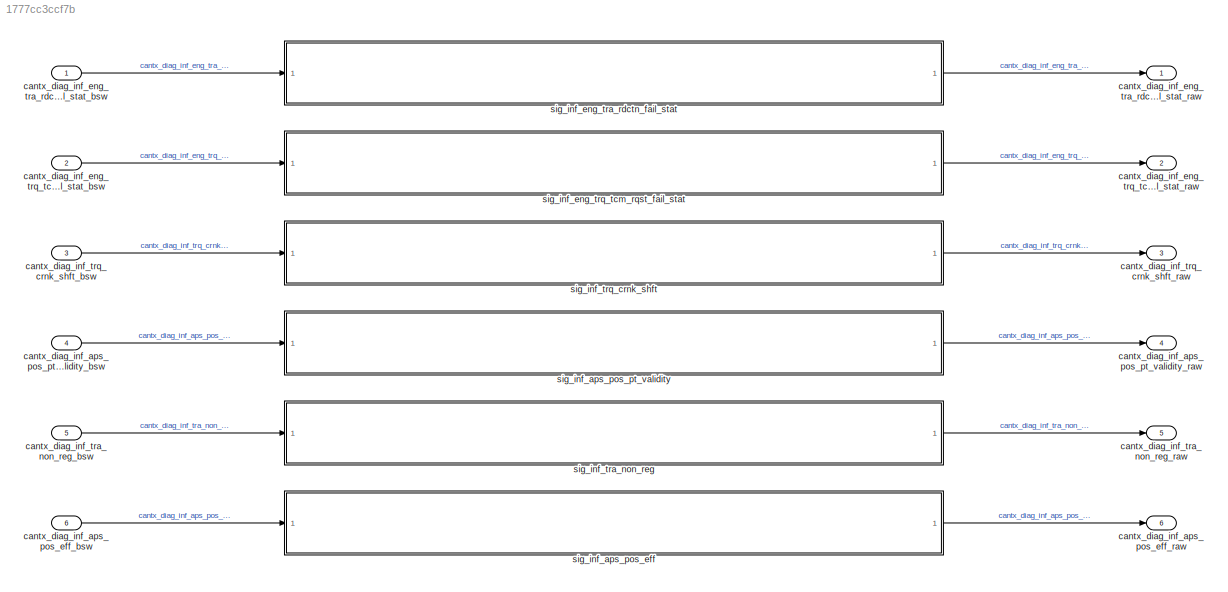
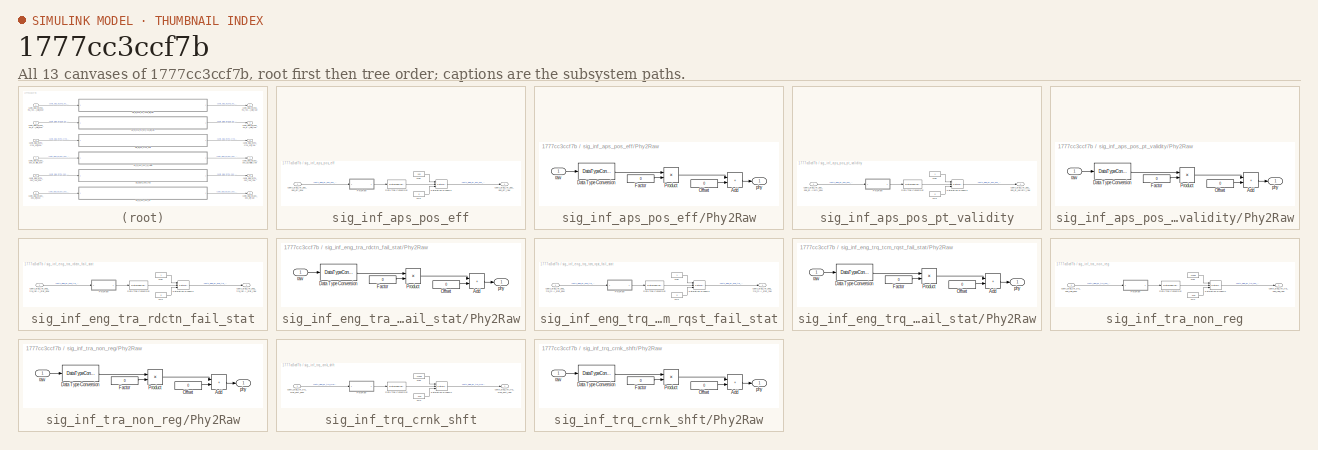
[diagram: thumbnail index - all 13 canvases of the model, root first then tree order]
MODEL slx_1777cc3ccf7b
KIND model
CONFIG AbsTol = auto
CONFIG FixedStep = auto
CONFIG MaxStep = auto
CONFIG MinStep = auto
CONFIG RelTol = 1e-3
CONFIG SampleTimeConstraint = Unconstrained
CONFIG Solver = ode45
CONFIG SolverMode = SingleTasking
CONFIG SolverName = ode45
CONFIG StartTime = 0.0
CONFIG StopTime = 10.0
BLOCK [Inport] cantx_diag_inf_aps_pos_eff_bsw
  Port = 6
BLOCK [Outport] cantx_diag_inf_aps_pos_eff_raw
  Port = 6
BLOCK [Inport] cantx_diag_inf_aps_pos_pt_validity_bsw
  Port = 4
BLOCK [Outport] cantx_diag_inf_aps_pos_pt_validity_raw
  Port = 4
BLOCK [Inport] cantx_diag_inf_eng_tra_rdctn_fail_stat_bsw
BLOCK [Outport] cantx_diag_inf_eng_tra_rdctn_fail_stat_raw
BLOCK [Inport] cantx_diag_inf_eng_trq_tcm_rqst_fail_stat_bsw
  Port = 2
BLOCK [Outport] cantx_diag_inf_eng_trq_tcm_rqst_fail_stat_raw
  Port = 2
BLOCK [Inport] cantx_diag_inf_tra_non_reg_bsw
  Port = 5
BLOCK [Outport] cantx_diag_inf_tra_non_reg_raw
  Port = 5
BLOCK [Inport] cantx_diag_inf_trq_crnk_shft_bsw
  Port = 3
BLOCK [Outport] cantx_diag_inf_trq_crnk_shft_raw
  Port = 3
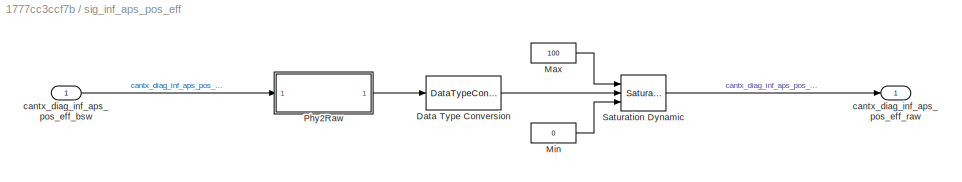
BLOCK [SubSystem] sig_inf_aps_pos_eff
  Ports = [1, 1]
  RequestExecContextInheritance = off
BLOCK [DataTypeConversion] sig_inf_aps_pos_eff/Data Type Conversion
  OutDataTypeStr = uint8
  RndMeth = Floor
  SaturateOnIntegerOverflow = off
BLOCK [Constant] sig_inf_aps_pos_eff/Max
  Value = 100
BLOCK [Constant] sig_inf_aps_pos_eff/Min
  Value = 0
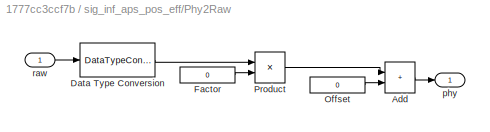
BLOCK [SubSystem] sig_inf_aps_pos_eff/Phy2Raw
  Ports = [1, 1]
  RequestExecContextInheritance = off
BLOCK [Sum] sig_inf_aps_pos_eff/Phy2Raw/Add
  IconShape = rectangular
  Ports = [2, 1]
BLOCK [DataTypeConversion] sig_inf_aps_pos_eff/Phy2Raw/Data Type Conversion
  OutDataTypeStr = single
  RndMeth = Floor
  SaturateOnIntegerOverflow = off
BLOCK [Constant] sig_inf_aps_pos_eff/Phy2Raw/Factor
  Value = 0
BLOCK [Constant] sig_inf_aps_pos_eff/Phy2Raw/Offset
  Value = 0
BLOCK [Product] sig_inf_aps_pos_eff/Phy2Raw/Product
  Ports = [2, 1]
BLOCK [Outport] sig_inf_aps_pos_eff/Phy2Raw/phy
  IconDisplay = Port number and signal name
BLOCK [Inport] sig_inf_aps_pos_eff/Phy2Raw/raw
BLOCK [Reference] sig_inf_aps_pos_eff/Saturation Dynamic  REF=simulink/Discontinuities/Saturation
Dynamic
  DoSatur = off
  LockScale = off
  OutDataType = fixdt(1, 16)
  OutDataTypeStr = Inherit: Same as second input
  OutMax = []
  OutMin = []
  OutScaling = 2^-10
  OutputDataTypeScalingMode = Same as second input
  Ports = [3, 1]
  RTWMemSecDataConstants = Inherit from model
  RTWMemSecDataInternal = Inherit from model
  RTWMemSecDataParameters = Inherit from model
  RTWMemSecFuncExecute = Inherit from model
  RTWMemSecFuncInitTerm = Inherit from model
  RndMeth = Floor
  SourceBlock = simulink/Discontinuities/Saturation\nDynamic
  SourceType = Saturation Dynamic
BLOCK [Inport] sig_inf_aps_pos_eff/cantx_diag_inf_aps_pos_eff_bsw
BLOCK [Outport] sig_inf_aps_pos_eff/cantx_diag_inf_aps_pos_eff_raw
BLOCK [SubSystem] sig_inf_aps_pos_pt_validity
  Ports = [1, 1]
  RequestExecContextInheritance = off
BLOCK [DataTypeConversion] sig_inf_aps_pos_pt_validity/Data Type Conversion
  OutDataTypeStr = uint8
  RndMeth = Floor
  SaturateOnIntegerOverflow = off
BLOCK [Constant] sig_inf_aps_pos_pt_validity/Max
BLOCK [Constant] sig_inf_aps_pos_pt_validity/Min
  Value = 0
BLOCK [SubSystem] sig_inf_aps_pos_pt_validity/Phy2Raw
  Ports = [1, 1]
  RequestExecContextInheritance = off
BLOCK [Sum] sig_inf_aps_pos_pt_validity/Phy2Raw/Add
  IconShape = rectangular
  Ports = [2, 1]
BLOCK [DataTypeConversion] sig_inf_aps_pos_pt_validity/Phy2Raw/Data Type Conversion
  OutDataTypeStr = single
  RndMeth = Floor
  SaturateOnIntegerOverflow = off
BLOCK [Constant] sig_inf_aps_pos_pt_validity/Phy2Raw/Factor
  Value = 0
BLOCK [Constant] sig_inf_aps_pos_pt_validity/Phy2Raw/Offset
  Value = 0
BLOCK [Product] sig_inf_aps_pos_pt_validity/Phy2Raw/Product
  Ports = [2, 1]
BLOCK [Outport] sig_inf_aps_pos_pt_validity/Phy2Raw/phy
  IconDisplay = Port number and signal name
BLOCK [Inport] sig_inf_aps_pos_pt_validity/Phy2Raw/raw
BLOCK [Reference] sig_inf_aps_pos_pt_validity/Saturation Dynamic  REF=simulink/Discontinuities/Saturation
Dynamic
  DoSatur = off
  LockScale = off
  OutDataType = fixdt(1, 16)
  OutDataTypeStr = Inherit: Same as second input
  OutMax = []
  OutMin = []
  OutScaling = 2^-10
  OutputDataTypeScalingMode = Same as second input
  Ports = [3, 1]
  RTWMemSecDataConstants = Inherit from model
  RTWMemSecDataInternal = Inherit from model
  RTWMemSecDataParameters = Inherit from model
  RTWMemSecFuncExecute = Inherit from model
  RTWMemSecFuncInitTerm = Inherit from model
  RndMeth = Floor
  SourceBlock = simulink/Discontinuities/Saturation\nDynamic
  SourceType = Saturation Dynamic
BLOCK [Inport] sig_inf_aps_pos_pt_validity/cantx_diag_inf_aps_pos_pt_validity_bsw
BLOCK [Outport] sig_inf_aps_pos_pt_validity/cantx_diag_inf_aps_pos_pt_validity_raw
BLOCK [SubSystem] sig_inf_eng_tra_rdctn_fail_stat
  Ports = [1, 1]
  RequestExecContextInheritance = off
BLOCK [DataTypeConversion] sig_inf_eng_tra_rdctn_fail_stat/Data Type Conversion
  OutDataTypeStr = uint8
  RndMeth = Floor
  SaturateOnIntegerOverflow = off
BLOCK [Constant] sig_inf_eng_tra_rdctn_fail_stat/Max
BLOCK [Constant] sig_inf_eng_tra_rdctn_fail_stat/Min
  Value = 0
BLOCK [SubSystem] sig_inf_eng_tra_rdctn_fail_stat/Phy2Raw
  Ports = [1, 1]
  RequestExecContextInheritance = off
BLOCK [Sum] sig_inf_eng_tra_rdctn_fail_stat/Phy2Raw/Add
  IconShape = rectangular
  Ports = [2, 1]
BLOCK [DataTypeConversion] sig_inf_eng_tra_rdctn_fail_stat/Phy2Raw/Data Type Conversion
  OutDataTypeStr = single
  RndMeth = Floor
  SaturateOnIntegerOverflow = off
BLOCK [Constant] sig_inf_eng_tra_rdctn_fail_stat/Phy2Raw/Factor
  Value = 0
BLOCK [Constant] sig_inf_eng_tra_rdctn_fail_stat/Phy2Raw/Offset
  Value = 0
BLOCK [Product] sig_inf_eng_tra_rdctn_fail_stat/Phy2Raw/Product
  Ports = [2, 1]
BLOCK [Outport] sig_inf_eng_tra_rdctn_fail_stat/Phy2Raw/phy
  IconDisplay = Port number and signal name
BLOCK [Inport] sig_inf_eng_tra_rdctn_fail_stat/Phy2Raw/raw
BLOCK [Reference] sig_inf_eng_tra_rdctn_fail_stat/Saturation Dynamic  REF=simulink/Discontinuities/Saturation
Dynamic
  DoSatur = off
  LockScale = off
  OutDataType = fixdt(1, 16)
  OutDataTypeStr = Inherit: Same as second input
  OutMax = []
  OutMin = []
  OutScaling = 2^-10
  OutputDataTypeScalingMode = Same as second input
  Ports = [3, 1]
  RTWMemSecDataConstants = Inherit from model
  RTWMemSecDataInternal = Inherit from model
  RTWMemSecDataParameters = Inherit from model
  RTWMemSecFuncExecute = Inherit from model
  RTWMemSecFuncInitTerm = Inherit from model
  RndMeth = Floor
  SourceBlock = simulink/Discontinuities/Saturation\nDynamic
  SourceType = Saturation Dynamic
BLOCK [Inport] sig_inf_eng_tra_rdctn_fail_stat/cantx_diag_inf_eng_tra_rdctn_fail_stat_bsw
BLOCK [Outport] sig_inf_eng_tra_rdctn_fail_stat/cantx_diag_inf_eng_tra_rdctn_fail_stat_raw
BLOCK [SubSystem] sig_inf_eng_trq_tcm_rqst_fail_stat
  Ports = [1, 1]
  RequestExecContextInheritance = off
BLOCK [DataTypeConversion] sig_inf_eng_trq_tcm_rqst_fail_stat/Data Type Conversion
  OutDataTypeStr = uint8
  RndMeth = Floor
  SaturateOnIntegerOverflow = off
BLOCK [Constant] sig_inf_eng_trq_tcm_rqst_fail_stat/Max
BLOCK [Constant] sig_inf_eng_trq_tcm_rqst_fail_stat/Min
  Value = 0
BLOCK [SubSystem] sig_inf_eng_trq_tcm_rqst_fail_stat/Phy2Raw
  Ports = [1, 1]
  RequestExecContextInheritance = off
BLOCK [Sum] sig_inf_eng_trq_tcm_rqst_fail_stat/Phy2Raw/Add
  IconShape = rectangular
  Ports = [2, 1]
BLOCK [DataTypeConversion] sig_inf_eng_trq_tcm_rqst_fail_stat/Phy2Raw/Data Type Conversion
  OutDataTypeStr = single
  RndMeth = Floor
  SaturateOnIntegerOverflow = off
BLOCK [Constant] sig_inf_eng_trq_tcm_rqst_fail_stat/Phy2Raw/Factor
  Value = 0
BLOCK [Constant] sig_inf_eng_trq_tcm_rqst_fail_stat/Phy2Raw/Offset
  Value = 0
BLOCK [Product] sig_inf_eng_trq_tcm_rqst_fail_stat/Phy2Raw/Product
  Ports = [2, 1]
BLOCK [Outport] sig_inf_eng_trq_tcm_rqst_fail_stat/Phy2Raw/phy
  IconDisplay = Port number and signal name
BLOCK [Inport] sig_inf_eng_trq_tcm_rqst_fail_stat/Phy2Raw/raw
BLOCK [Reference] sig_inf_eng_trq_tcm_rqst_fail_stat/Saturation Dynamic  REF=simulink/Discontinuities/Saturation
Dynamic
  DoSatur = off
  LockScale = off
  OutDataType = fixdt(1, 16)
  OutDataTypeStr = Inherit: Same as second input
  OutMax = []
  OutMin = []
  OutScaling = 2^-10
  OutputDataTypeScalingMode = Same as second input
  Ports = [3, 1]
  RTWMemSecDataConstants = Inherit from model
  RTWMemSecDataInternal = Inherit from model
  RTWMemSecDataParameters = Inherit from model
  RTWMemSecFuncExecute = Inherit from model
  RTWMemSecFuncInitTerm = Inherit from model
  RndMeth = Floor
  SourceBlock = simulink/Discontinuities/Saturation\nDynamic
  SourceType = Saturation Dynamic
BLOCK [Inport] sig_inf_eng_trq_tcm_rqst_fail_stat/cantx_diag_inf_eng_trq_tcm_rqst_fail_stat_bsw
BLOCK [Outport] sig_inf_eng_trq_tcm_rqst_fail_stat/cantx_diag_inf_eng_trq_tcm_rqst_fail_stat_raw
BLOCK [SubSystem] sig_inf_tra_non_reg
  Ports = [1, 1]
  RequestExecContextInheritance = off
BLOCK [DataTypeConversion] sig_inf_tra_non_reg/Data Type Conversion
  OutDataTypeStr = uint8
  RndMeth = Floor
  SaturateOnIntegerOverflow = off
BLOCK [Constant] sig_inf_tra_non_reg/Max
  Value = 1199.5
BLOCK [Constant] sig_inf_tra_non_reg/Min
  Value = -848
BLOCK [SubSystem] sig_inf_tra_non_reg/Phy2Raw
  Ports = [1, 1]
  RequestExecContextInheritance = off
BLOCK [Sum] sig_inf_tra_non_reg/Phy2Raw/Add
  IconShape = rectangular
  Ports = [2, 1]
BLOCK [DataTypeConversion] sig_inf_tra_non_reg/Phy2Raw/Data Type Conversion
  OutDataTypeStr = single
  RndMeth = Floor
  SaturateOnIntegerOverflow = off
BLOCK [Constant] sig_inf_tra_non_reg/Phy2Raw/Factor
  Value = 0
BLOCK [Constant] sig_inf_tra_non_reg/Phy2Raw/Offset
  Value = 0
BLOCK [Product] sig_inf_tra_non_reg/Phy2Raw/Product
  Ports = [2, 1]
BLOCK [Outport] sig_inf_tra_non_reg/Phy2Raw/phy
  IconDisplay = Port number and signal name
BLOCK [Inport] sig_inf_tra_non_reg/Phy2Raw/raw
BLOCK [Reference] sig_inf_tra_non_reg/Saturation Dynamic  REF=simulink/Discontinuities/Saturation
Dynamic
  DoSatur = off
  LockScale = off
  OutDataType = fixdt(1, 16)
  OutDataTypeStr = Inherit: Same as second input
  OutMax = []
  OutMin = []
  OutScaling = 2^-10
  OutputDataTypeScalingMode = Same as second input
  Ports = [3, 1]
  RTWMemSecDataConstants = Inherit from model
  RTWMemSecDataInternal = Inherit from model
  RTWMemSecDataParameters = Inherit from model
  RTWMemSecFuncExecute = Inherit from model
  RTWMemSecFuncInitTerm = Inherit from model
  RndMeth = Floor
  SourceBlock = simulink/Discontinuities/Saturation\nDynamic
  SourceType = Saturation Dynamic
BLOCK [Inport] sig_inf_tra_non_reg/cantx_diag_inf_tra_non_reg_bsw
BLOCK [Outport] sig_inf_tra_non_reg/cantx_diag_inf_tra_non_reg_raw
BLOCK [SubSystem] sig_inf_trq_crnk_shft
  Ports = [1, 1]
  RequestExecContextInheritance = off
BLOCK [DataTypeConversion] sig_inf_trq_crnk_shft/Data Type Conversion
  OutDataTypeStr = uint8
  RndMeth = Floor
  SaturateOnIntegerOverflow = off
BLOCK [Constant] sig_inf_trq_crnk_shft/Max
  Value = 1199.5
BLOCK [Constant] sig_inf_trq_crnk_shft/Min
  Value = -848
BLOCK [SubSystem] sig_inf_trq_crnk_shft/Phy2Raw
  Ports = [1, 1]
  RequestExecContextInheritance = off
BLOCK [Sum] sig_inf_trq_crnk_shft/Phy2Raw/Add
  IconShape = rectangular
  Ports = [2, 1]
BLOCK [DataTypeConversion] sig_inf_trq_crnk_shft/Phy2Raw/Data Type Conversion
  OutDataTypeStr = single
  RndMeth = Floor
  SaturateOnIntegerOverflow = off
BLOCK [Constant] sig_inf_trq_crnk_shft/Phy2Raw/Factor
  Value = 0
BLOCK [Constant] sig_inf_trq_crnk_shft/Phy2Raw/Offset
  Value = 0
BLOCK [Product] sig_inf_trq_crnk_shft/Phy2Raw/Product
  Ports = [2, 1]
BLOCK [Outport] sig_inf_trq_crnk_shft/Phy2Raw/phy
  IconDisplay = Port number and signal name
BLOCK [Inport] sig_inf_trq_crnk_shft/Phy2Raw/raw
BLOCK [Reference] sig_inf_trq_crnk_shft/Saturation Dynamic  REF=simulink/Discontinuities/Saturation
Dynamic
  DoSatur = off
  LockScale = off
  OutDataType = fixdt(1, 16)
  OutDataTypeStr = Inherit: Same as second input
  OutMax = []
  OutMin = []
  OutScaling = 2^-10
  OutputDataTypeScalingMode = Same as second input
  Ports = [3, 1]
  RTWMemSecDataConstants = Inherit from model
  RTWMemSecDataInternal = Inherit from model
  RTWMemSecDataParameters = Inherit from model
  RTWMemSecFuncExecute = Inherit from model
  RTWMemSecFuncInitTerm = Inherit from model
  RndMeth = Floor
  SourceBlock = simulink/Discontinuities/Saturation\nDynamic
  SourceType = Saturation Dynamic
BLOCK [Inport] sig_inf_trq_crnk_shft/cantx_diag_inf_trq_crnk_shft_bsw
BLOCK [Outport] sig_inf_trq_crnk_shft/cantx_diag_inf_trq_crnk_shft_raw
LINE cantx_diag_inf_aps_pos_eff_bsw:1 -> sig_inf_aps_pos_eff:1
LINE cantx_diag_inf_aps_pos_pt_validity_bsw:1 -> sig_inf_aps_pos_pt_validity:1
LINE cantx_diag_inf_eng_tra_rdctn_fail_stat_bsw:1 -> sig_inf_eng_tra_rdctn_fail_stat:1
LINE cantx_diag_inf_eng_trq_tcm_rqst_fail_stat_bsw:1 -> sig_inf_eng_trq_tcm_rqst_fail_stat:1
LINE cantx_diag_inf_tra_non_reg_bsw:1 -> sig_inf_tra_non_reg:1
LINE cantx_diag_inf_trq_crnk_shft_bsw:1 -> sig_inf_trq_crnk_shft:1
LINE sig_inf_aps_pos_eff/Data Type Conversion:1 -> sig_inf_aps_pos_eff/Saturation Dynamic:2
LINE sig_inf_aps_pos_eff/Max:1 -> sig_inf_aps_pos_eff/Saturation Dynamic:1
LINE sig_inf_aps_pos_eff/Min:1 -> sig_inf_aps_pos_eff/Saturation Dynamic:3
LINE sig_inf_aps_pos_eff/Phy2Raw/Add:1 -> sig_inf_aps_pos_eff/Phy2Raw/phy:1
LINE sig_inf_aps_pos_eff/Phy2Raw/Data Type Conversion:1 -> sig_inf_aps_pos_eff/Phy2Raw/Product:1
LINE sig_inf_aps_pos_eff/Phy2Raw/Factor:1 -> sig_inf_aps_pos_eff/Phy2Raw/Product:2
LINE sig_inf_aps_pos_eff/Phy2Raw/Offset:1 -> sig_inf_aps_pos_eff/Phy2Raw/Add:2
LINE sig_inf_aps_pos_eff/Phy2Raw/Product:1 -> sig_inf_aps_pos_eff/Phy2Raw/Add:1
LINE sig_inf_aps_pos_eff/Phy2Raw/raw:1 -> sig_inf_aps_pos_eff/Phy2Raw/Data Type Conversion:1
LINE sig_inf_aps_pos_eff/Phy2Raw:1 -> sig_inf_aps_pos_eff/Data Type Conversion:1
LINE sig_inf_aps_pos_eff/Saturation Dynamic:1 -> sig_inf_aps_pos_eff/cantx_diag_inf_aps_pos_eff_raw:1
LINE sig_inf_aps_pos_eff/cantx_diag_inf_aps_pos_eff_bsw:1 -> sig_inf_aps_pos_eff/Phy2Raw:1
LINE sig_inf_aps_pos_eff:1 -> cantx_diag_inf_aps_pos_eff_raw:1
LINE sig_inf_aps_pos_pt_validity/Data Type Conversion:1 -> sig_inf_aps_pos_pt_validity/Saturation Dynamic:2
LINE sig_inf_aps_pos_pt_validity/Max:1 -> sig_inf_aps_pos_pt_validity/Saturation Dynamic:1
LINE sig_inf_aps_pos_pt_validity/Min:1 -> sig_inf_aps_pos_pt_validity/Saturation Dynamic:3
LINE sig_inf_aps_pos_pt_validity/Phy2Raw/Add:1 -> sig_inf_aps_pos_pt_validity/Phy2Raw/phy:1
LINE sig_inf_aps_pos_pt_validity/Phy2Raw/Data Type Conversion:1 -> sig_inf_aps_pos_pt_validity/Phy2Raw/Product:1
LINE sig_inf_aps_pos_pt_validity/Phy2Raw/Factor:1 -> sig_inf_aps_pos_pt_validity/Phy2Raw/Product:2
LINE sig_inf_aps_pos_pt_validity/Phy2Raw/Offset:1 -> sig_inf_aps_pos_pt_validity/Phy2Raw/Add:2
LINE sig_inf_aps_pos_pt_validity/Phy2Raw/Product:1 -> sig_inf_aps_pos_pt_validity/Phy2Raw/Add:1
LINE sig_inf_aps_pos_pt_validity/Phy2Raw/raw:1 -> sig_inf_aps_pos_pt_validity/Phy2Raw/Data Type Conversion:1
LINE sig_inf_aps_pos_pt_validity/Phy2Raw:1 -> sig_inf_aps_pos_pt_validity/Data Type Conversion:1
LINE sig_inf_aps_pos_pt_validity/Saturation Dynamic:1 -> sig_inf_aps_pos_pt_validity/cantx_diag_inf_aps_pos_pt_validity_raw:1
LINE sig_inf_aps_pos_pt_validity/cantx_diag_inf_aps_pos_pt_validity_bsw:1 -> sig_inf_aps_pos_pt_validity/Phy2Raw:1
LINE sig_inf_aps_pos_pt_validity:1 -> cantx_diag_inf_aps_pos_pt_validity_raw:1
LINE sig_inf_eng_tra_rdctn_fail_stat/Data Type Conversion:1 -> sig_inf_eng_tra_rdctn_fail_stat/Saturation Dynamic:2
LINE sig_inf_eng_tra_rdctn_fail_stat/Max:1 -> sig_inf_eng_tra_rdctn_fail_stat/Saturation Dynamic:1
LINE sig_inf_eng_tra_rdctn_fail_stat/Min:1 -> sig_inf_eng_tra_rdctn_fail_stat/Saturation Dynamic:3
LINE sig_inf_eng_tra_rdctn_fail_stat/Phy2Raw/Add:1 -> sig_inf_eng_tra_rdctn_fail_stat/Phy2Raw/phy:1
LINE sig_inf_eng_tra_rdctn_fail_stat/Phy2Raw/Data Type Conversion:1 -> sig_inf_eng_tra_rdctn_fail_stat/Phy2Raw/Product:1
LINE sig_inf_eng_tra_rdctn_fail_stat/Phy2Raw/Factor:1 -> sig_inf_eng_tra_rdctn_fail_stat/Phy2Raw/Product:2
LINE sig_inf_eng_tra_rdctn_fail_stat/Phy2Raw/Offset:1 -> sig_inf_eng_tra_rdctn_fail_stat/Phy2Raw/Add:2
LINE sig_inf_eng_tra_rdctn_fail_stat/Phy2Raw/Product:1 -> sig_inf_eng_tra_rdctn_fail_stat/Phy2Raw/Add:1
LINE sig_inf_eng_tra_rdctn_fail_stat/Phy2Raw/raw:1 -> sig_inf_eng_tra_rdctn_fail_stat/Phy2Raw/Data Type Conversion:1
LINE sig_inf_eng_tra_rdctn_fail_stat/Phy2Raw:1 -> sig_inf_eng_tra_rdctn_fail_stat/Data Type Conversion:1
LINE sig_inf_eng_tra_rdctn_fail_stat/Saturation Dynamic:1 -> sig_inf_eng_tra_rdctn_fail_stat/cantx_diag_inf_eng_tra_rdctn_fail_stat_raw:1
LINE sig_inf_eng_tra_rdctn_fail_stat/cantx_diag_inf_eng_tra_rdctn_fail_stat_bsw:1 -> sig_inf_eng_tra_rdctn_fail_stat/Phy2Raw:1
LINE sig_inf_eng_tra_rdctn_fail_stat:1 -> cantx_diag_inf_eng_tra_rdctn_fail_stat_raw:1
LINE sig_inf_eng_trq_tcm_rqst_fail_stat/Data Type Conversion:1 -> sig_inf_eng_trq_tcm_rqst_fail_stat/Saturation Dynamic:2
LINE sig_inf_eng_trq_tcm_rqst_fail_stat/Max:1 -> sig_inf_eng_trq_tcm_rqst_fail_stat/Saturation Dynamic:1
LINE sig_inf_eng_trq_tcm_rqst_fail_stat/Min:1 -> sig_inf_eng_trq_tcm_rqst_fail_stat/Saturation Dynamic:3
LINE sig_inf_eng_trq_tcm_rqst_fail_stat/Phy2Raw/Add:1 -> sig_inf_eng_trq_tcm_rqst_fail_stat/Phy2Raw/phy:1
LINE sig_inf_eng_trq_tcm_rqst_fail_stat/Phy2Raw/Data Type Conversion:1 -> sig_inf_eng_trq_tcm_rqst_fail_stat/Phy2Raw/Product:1
LINE sig_inf_eng_trq_tcm_rqst_fail_stat/Phy2Raw/Factor:1 -> sig_inf_eng_trq_tcm_rqst_fail_stat/Phy2Raw/Product:2
LINE sig_inf_eng_trq_tcm_rqst_fail_stat/Phy2Raw/Offset:1 -> sig_inf_eng_trq_tcm_rqst_fail_stat/Phy2Raw/Add:2
LINE sig_inf_eng_trq_tcm_rqst_fail_stat/Phy2Raw/Product:1 -> sig_inf_eng_trq_tcm_rqst_fail_stat/Phy2Raw/Add:1
LINE sig_inf_eng_trq_tcm_rqst_fail_stat/Phy2Raw/raw:1 -> sig_inf_eng_trq_tcm_rqst_fail_stat/Phy2Raw/Data Type Conversion:1
LINE sig_inf_eng_trq_tcm_rqst_fail_stat/Phy2Raw:1 -> sig_inf_eng_trq_tcm_rqst_fail_stat/Data Type Conversion:1
LINE sig_inf_eng_trq_tcm_rqst_fail_stat/Saturation Dynamic:1 -> sig_inf_eng_trq_tcm_rqst_fail_stat/cantx_diag_inf_eng_trq_tcm_rqst_fail_stat_raw:1
LINE sig_inf_eng_trq_tcm_rqst_fail_stat/cantx_diag_inf_eng_trq_tcm_rqst_fail_stat_bsw:1 -> sig_inf_eng_trq_tcm_rqst_fail_stat/Phy2Raw:1
LINE sig_inf_eng_trq_tcm_rqst_fail_stat:1 -> cantx_diag_inf_eng_trq_tcm_rqst_fail_stat_raw:1
LINE sig_inf_tra_non_reg/Data Type Conversion:1 -> sig_inf_tra_non_reg/Saturation Dynamic:2
LINE sig_inf_tra_non_reg/Max:1 -> sig_inf_tra_non_reg/Saturation Dynamic:1
LINE sig_inf_tra_non_reg/Min:1 -> sig_inf_tra_non_reg/Saturation Dynamic:3
LINE sig_inf_tra_non_reg/Phy2Raw/Add:1 -> sig_inf_tra_non_reg/Phy2Raw/phy:1
LINE sig_inf_tra_non_reg/Phy2Raw/Data Type Conversion:1 -> sig_inf_tra_non_reg/Phy2Raw/Product:1
LINE sig_inf_tra_non_reg/Phy2Raw/Factor:1 -> sig_inf_tra_non_reg/Phy2Raw/Product:2
LINE sig_inf_tra_non_reg/Phy2Raw/Offset:1 -> sig_inf_tra_non_reg/Phy2Raw/Add:2
LINE sig_inf_tra_non_reg/Phy2Raw/Product:1 -> sig_inf_tra_non_reg/Phy2Raw/Add:1
LINE sig_inf_tra_non_reg/Phy2Raw/raw:1 -> sig_inf_tra_non_reg/Phy2Raw/Data Type Conversion:1
LINE sig_inf_tra_non_reg/Phy2Raw:1 -> sig_inf_tra_non_reg/Data Type Conversion:1
LINE sig_inf_tra_non_reg/Saturation Dynamic:1 -> sig_inf_tra_non_reg/cantx_diag_inf_tra_non_reg_raw:1
LINE sig_inf_tra_non_reg/cantx_diag_inf_tra_non_reg_bsw:1 -> sig_inf_tra_non_reg/Phy2Raw:1
LINE sig_inf_tra_non_reg:1 -> cantx_diag_inf_tra_non_reg_raw:1
LINE sig_inf_trq_crnk_shft/Data Type Conversion:1 -> sig_inf_trq_crnk_shft/Saturation Dynamic:2
LINE sig_inf_trq_crnk_shft/Max:1 -> sig_inf_trq_crnk_shft/Saturation Dynamic:1
LINE sig_inf_trq_crnk_shft/Min:1 -> sig_inf_trq_crnk_shft/Saturation Dynamic:3
LINE sig_inf_trq_crnk_shft/Phy2Raw/Add:1 -> sig_inf_trq_crnk_shft/Phy2Raw/phy:1
LINE sig_inf_trq_crnk_shft/Phy2Raw/Data Type Conversion:1 -> sig_inf_trq_crnk_shft/Phy2Raw/Product:1
LINE sig_inf_trq_crnk_shft/Phy2Raw/Factor:1 -> sig_inf_trq_crnk_shft/Phy2Raw/Product:2
LINE sig_inf_trq_crnk_shft/Phy2Raw/Offset:1 -> sig_inf_trq_crnk_shft/Phy2Raw/Add:2
LINE sig_inf_trq_crnk_shft/Phy2Raw/Product:1 -> sig_inf_trq_crnk_shft/Phy2Raw/Add:1
LINE sig_inf_trq_crnk_shft/Phy2Raw/raw:1 -> sig_inf_trq_crnk_shft/Phy2Raw/Data Type Conversion:1
LINE sig_inf_trq_crnk_shft/Phy2Raw:1 -> sig_inf_trq_crnk_shft/Data Type Conversion:1
LINE sig_inf_trq_crnk_shft/Saturation Dynamic:1 -> sig_inf_trq_crnk_shft/cantx_diag_inf_trq_crnk_shft_raw:1
LINE sig_inf_trq_crnk_shft/cantx_diag_inf_trq_crnk_shft_bsw:1 -> sig_inf_trq_crnk_shft/Phy2Raw:1
LINE sig_inf_trq_crnk_shft:1 -> cantx_diag_inf_trq_crnk_shft_raw:1
